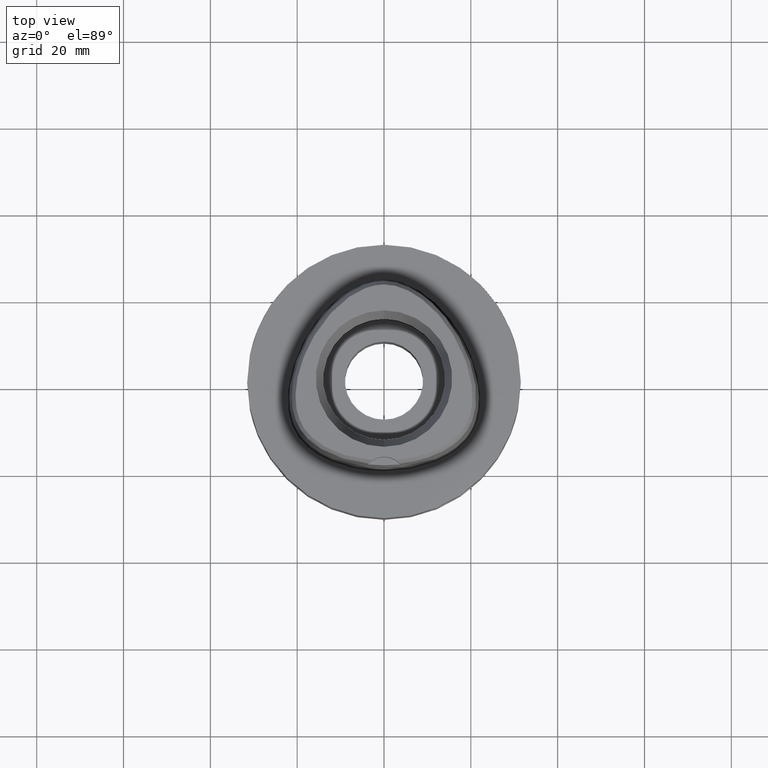
[diagram: clean part render]
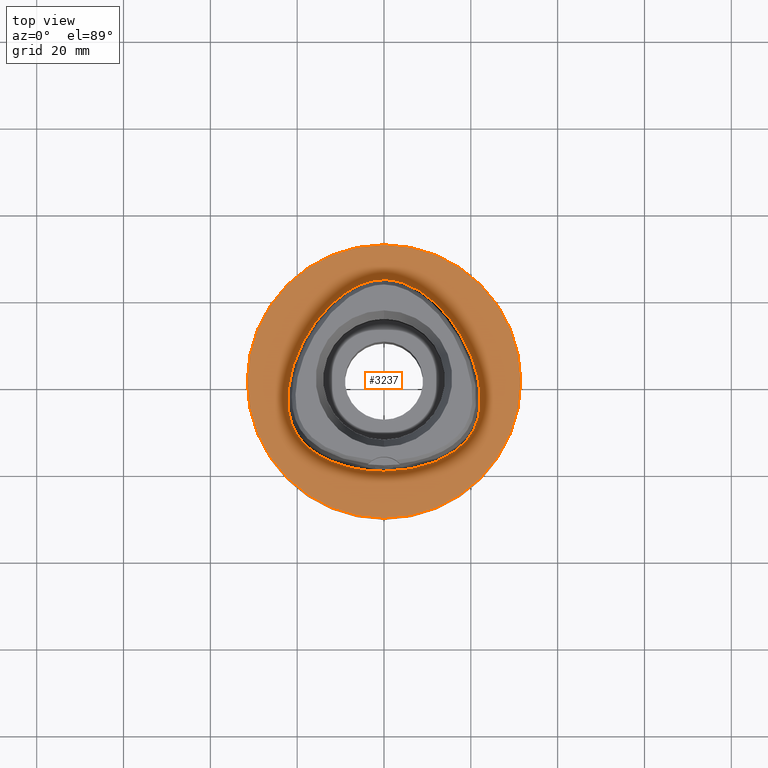
[diagram: same view with one face highlighted and labeled with its STEP entity id]
A machine part, top view. The second image highlights one B-rep face of the part: STEP entity #3237.
In plain terms, the highlighted planar face has unit normal (0, 0, -1).
Its self-contained STEP definition (entity closure, byte-faithful):
#77 = CARTESIAN_POINT ( 'NONE',  ( 5.098437023540008717, 22.52602540625645133, -6.704317588829104835E-07 ) ) ;
#209 = CARTESIAN_POINT ( 'NONE',  ( 0.0000000000000000000, 1.284042168905999827E-14, 0.0000000000000000000 ) ) ;
#220 = CARTESIAN_POINT ( 'NONE',  ( 0.0000000000000000000, 31.50000000000000000, 0.0000000000000000000 ) ) ;
#361 = CARTESIAN_POINT ( 'NONE',  ( -1.042620445671000137E-11, -20.67499999999999716, 1.284898113832999718E-13 ) ) ;
#454 = CARTESIAN_POINT ( 'NONE',  ( 16.95889173633975133, -15.67838868510706973, -6.704317588829104835E-07 ) ) ;
#466 = CARTESIAN_POINT ( 'NONE',  ( -20.74942740925061457, 4.657187500164842398, -1.936139383583793117E-08 ) ) ;
#514 = CARTESIAN_POINT ( 'NONE',  ( 14.40795640245716669, 15.64093751087823314, -6.704317588829104835E-07 ) ) ;
#542 = CARTESIAN_POINT ( 'NONE',  ( 10.74572892142285419, 19.17433595040339966, -6.704317588829104835E-07 ) ) ;
#648 = VERTEX_POINT ( 'NONE', #220 ) ;
#679 = DIRECTION ( 'NONE',  ( 0.0000000000000000000, 1.000000000000000000, 0.0000000000000000000 ) ) ;
#734 = CARTESIAN_POINT ( 'NONE',  ( 0.0000000000000000000, 1.284042168905999827E-14, 0.0000000000000000000 ) ) ;
#780 = VERTEX_POINT ( 'NONE', #1204 ) ;
#825 = FACE_BOUND ( 'NONE', #1275, .T. ) ;
#854 = EDGE_LOOP ( 'NONE', ( #1507, #3348 ) ) ;
#857 = AXIS2_PLACEMENT_3D ( 'NONE', #209, #2934, #679 ) ;
#859 = CARTESIAN_POINT ( 'NONE',  ( 20.74942742465746193, 4.657187505714481368, -6.704317588829104835E-07 ) ) ;
#873 = CARTESIAN_POINT ( 'NONE',  ( -20.34961798599187688, -11.74885742211361617, -1.936139383583793117E-08 ) ) ;
#887 = CARTESIAN_POINT ( 'NONE',  ( 14.67337965251771514, -17.21410157711000721, -6.704317588829104835E-07 ) ) ;
#937 = CARTESIAN_POINT ( 'NONE',  ( -1.042620445671000137E-11, -20.67499999999999716, 1.284898113832999718E-13 ) ) ;
#973 = CARTESIAN_POINT ( 'NONE',  ( 22.24453909536158847, -4.100468749901521548, -6.704317588829104835E-07 ) ) ;
#1198 = FACE_OUTER_BOUND ( 'NONE', #854, .T. ) ;
#1204 = CARTESIAN_POINT ( 'NONE',  ( -1.042620445671000137E-11, -20.67499999999999716, 1.284898113832999718E-13 ) ) ;
#1275 = EDGE_LOOP ( 'NONE', ( #5121, #2413 ) ) ;
#1299 = CARTESIAN_POINT ( 'NONE',  ( -0.8548392423348609714, 23.47500000048928825, -1.936139383583792786E-08 ) ) ;
#1351 = CARTESIAN_POINT ( 'NONE',  ( -11.23259756743898841, -18.89324218796141963, -1.936139383583793117E-08 ) ) ;
#1394 = CARTESIAN_POINT ( 'NONE',  ( 6.341471022189880458, -20.29812501659793256, -6.704317588829105894E-07 ) ) ;
#1507 = ORIENTED_EDGE ( 'NONE', *, *, #1643, .F. ) ;
#1643 = EDGE_CURVE ( 'NONE', #648, #2311, #5079, .T. ) ;
#1696 = CARTESIAN_POINT ( 'NONE',  ( -2.113823673093606637, -20.67500000048518061, -1.936139383583793117E-08 ) ) ;
#1810 = CARTESIAN_POINT ( 'NONE',  ( 20.34961800011020472, -11.74885743026355733, -6.704317588829104835E-07 ) ) ;
#2045 = AXIS2_PLACEMENT_3D ( 'NONE', #4611, #3012, #2935 ) ;
#2163 = CARTESIAN_POINT ( 'NONE',  ( -2.564517727056281338, 23.29328125048219533, -1.936139383583793117E-08 ) ) ;
#2204 = CARTESIAN_POINT ( 'NONE',  ( 19.64947367221709129, -12.82525391612707466, -6.704317588829104835E-07 ) ) ;
#2281 = EDGE_CURVE ( 'NONE', #780, #5371, #2637, .T. ) ;
#2311 = VERTEX_POINT ( 'NONE', #3860 ) ;
#2413 = ORIENTED_EDGE ( 'NONE', *, *, #2281, .F. ) ;
#2473 = DIRECTION ( 'NONE',  ( 0.0000000000000000000, 0.0000000000000000000, -1.000000000000000000 ) ) ;
#2534 = CARTESIAN_POINT ( 'NONE',  ( -20.93173252255640193, -10.60431640645195017, -1.936139383583793117E-08 ) ) ;
#2603 = CARTESIAN_POINT ( 'NONE',  ( 0.8548392434961373798, 23.47500001676050374, -6.704317588829104835E-07 ) ) ;
#2616 = CARTESIAN_POINT ( 'NONE',  ( -16.95889172623624930, -15.67838867225212418, -1.936139383583793117E-08 ) ) ;
#2637 = B_SPLINE_CURVE_WITH_KNOTS ( 'NONE', 3,
 ( #937, #4817, #1394, #3111, #887, #454, #3080, #2204, #1810, #3910, #5237, #4707, #973, #5152, #859, #4360, #514, #542, #2693, #77, #4786, #2603, #4328 ),
 .UNSPECIFIED., .F., .F.,
 ( 4, 1, 1, 1, 1, 1, 1, 1, 1, 1, 1, 1, 1, 1, 1, 1, 1, 1, 1, 1, 4 ),
 ( 0.0000000000000000000, 0.08333333333343000138, 0.1666666666668000230, 0.2083333333333000081, 0.2500000000000000000, 0.2916666666666999919, 0.3125000000000000000, 0.3333333333333000081, 0.3541666666666999919, 0.3750000000000000000, 0.4166666666666000163, 0.4583333333332000326, 0.4999999999998999689, 0.5833333333332000326, 0.6666666666664999852, 0.7499999999998000488, 0.8333333333329999704, 0.8749999999997000177, 0.9166666666664000651, 0.9583333333329999704, 1.000000000000000000 ),
 .UNSPECIFIED. ) ;
#2693 = CARTESIAN_POINT ( 'NONE',  ( 7.571159442842092524, 21.31457032700676635, -6.704317588829104835E-07 ) ) ;
#2934 = DIRECTION ( 'NONE',  ( 0.0000000000000000000, 0.0000000000000000000, -1.000000000000000000 ) ) ;
#2935 = DIRECTION ( 'NONE',  ( 0.0000000000000000000, -1.000000000000000000, 0.0000000000000000000 ) ) ;
#2960 = CARTESIAN_POINT ( 'NONE',  ( -6.341471019297461709, -20.29812500048721091, -1.936139383583793117E-08 ) ) ;
#3012 = DIRECTION ( 'NONE',  ( 0.0000000000000000000, 0.0000000000000000000, -1.000000000000000000 ) ) ;
#3016 = B_SPLINE_CURVE_WITH_KNOTS ( 'NONE', 3,
 ( #5530, #1299, #2163, #4773, #5502, #4266, #4694, #3440, #466, #4749, #4674, #3894, #4321, #2534, #873, #4721, #4215, #2616, #5140, #1351, #2960, #1696, #361 ),
 .UNSPECIFIED., .F., .F.,
 ( 4, 1, 1, 1, 1, 1, 1, 1, 1, 1, 1, 1, 1, 1, 1, 1, 1, 1, 1, 1, 4 ),
 ( 0.0000000000000000000, 0.04166666666751999565, 0.08333333333413001087, 0.1250000000007999990, 0.1666666666674000152, 0.2500000000006000200, 0.3333333333337999971, 0.4166666666671000052, 0.5000000000002999823, 0.5416666666670000296, 0.5833333333335000148, 0.6250000000001999512, 0.6458333333335000148, 0.6666666666667999674, 0.6875000000001000311, 0.7083333333333999837, 0.7500000000000000000, 0.7916666666667000474, 0.8333333333333000637, 0.9166666666666000163, 1.000000000000000000 ),
 .UNSPECIFIED. ) ;
#3080 = CARTESIAN_POINT ( 'NONE',  ( 18.56841066362533610, -14.16937989437063194, -6.704317588829104835E-07 ) ) ;
#3111 = CARTESIAN_POINT ( 'NONE',  ( 11.23259757303450890, -18.89324220332994742, -6.704317588829104835E-07 ) ) ;
#3237 = ADVANCED_FACE ( 'NONE', ( #1198, #825 ), #5142, .F. ) ;
#3329 = DIRECTION ( 'NONE',  ( 0.0000000000000000000, -1.000000000000000000, 0.0000000000000000000 ) ) ;
#3348 = ORIENTED_EDGE ( 'NONE', *, *, #5356, .F. ) ;
#3440 = CARTESIAN_POINT ( 'NONE',  ( -18.06826688568742867, 10.43171875024612305, -1.936139383583793117E-08 ) ) ;
#3860 = CARTESIAN_POINT ( 'NONE',  ( 0.0000000000000000000, -31.50000000000000000, 0.0000000000000000000 ) ) ;
#3894 = CARTESIAN_POINT ( 'NONE',  ( -22.05732874370039198, -6.847636718819056334, -1.936139383583793117E-08 ) ) ;
#3910 = CARTESIAN_POINT ( 'NONE',  ( 20.93173253746063267, -10.60431641307271988, -6.704317588829104835E-07 ) ) ;
#4205 = CIRCLE ( 'NONE', #4744, 31.50000000000000000 ) ;
#4215 = CARTESIAN_POINT ( 'NONE',  ( -18.56841065177838956, -14.16937988315053865, -1.936139383583793117E-08 ) ) ;
#4266 = CARTESIAN_POINT ( 'NONE',  ( -10.74572891090238436, 19.17433593787038859, -1.936139383583793117E-08 ) ) ;
#4321 = CARTESIAN_POINT ( 'NONE',  ( -21.55524826055441778, -8.996025390764080143, -1.936139383583793117E-08 ) ) ;
#4328 = CARTESIAN_POINT ( 'NONE',  ( 5.534747782599000141E-11, 23.47499999999000053, 1.254922092168000080E-13 ) ) ;
#4360 = CARTESIAN_POINT ( 'NONE',  ( 18.06826689985112111, 10.43171875842249108, -6.704317588829104835E-07 ) ) ;
#4611 = CARTESIAN_POINT ( 'NONE',  ( 0.0000000000000000000, 1.224646799146999965E-14, 0.0000000000000000000 ) ) ;
#4674 = CARTESIAN_POINT ( 'NONE',  ( -22.24453907903185268, -4.100468749996733386, -1.936139383583793117E-08 ) ) ;
#4694 = CARTESIAN_POINT ( 'NONE',  ( -14.40795638995207462, 15.64093750031059926, -1.936139383583793117E-08 ) ) ;
#4707 = CARTESIAN_POINT ( 'NONE',  ( 22.05732875988168118, -6.847636721144406913, -6.704317588829104835E-07 ) ) ;
#4721 = CARTESIAN_POINT ( 'NONE',  ( -19.64947365902738596, -12.82525390653195352, -1.936139383583793117E-08 ) ) ;
#4744 = AXIS2_PLACEMENT_3D ( 'NONE', #734, #2473, #3329 ) ;
#4749 = CARTESIAN_POINT ( 'NONE',  ( -21.97832647834290043, -0.2810937499153365882, -1.936139383583793117E-08 ) ) ;
#4773 = CARTESIAN_POINT ( 'NONE',  ( -5.098437017463878007, 22.52602539107704516, -1.936139383583793117E-08 ) ) ;
#4786 = CARTESIAN_POINT ( 'NONE',  ( 2.564517730401052020, 23.29328126649896546, -6.704317588829104835E-07 ) ) ;
#4817 = CARTESIAN_POINT ( 'NONE',  ( 2.113823674063530778, -20.67500001675610122, -6.704317588829103776E-07 ) ) ;
#4923 = EDGE_CURVE ( 'NONE', #5371, #780, #3016, .T. ) ;
#5079 = CIRCLE ( 'NONE', #857, 31.50000000000000000 ) ;
#5121 = ORIENTED_EDGE ( 'NONE', *, *, #4923, .F. ) ;
#5140 = CARTESIAN_POINT ( 'NONE',  ( -14.67337964443183296, -17.21410156292554561, -1.936139383583793117E-08 ) ) ;
#5142 = PLANE ( 'NONE',  #2045 ) ;
#5152 = CARTESIAN_POINT ( 'NONE',  ( 21.97832649445885522, -0.2810937470676990180, -6.704317588829104835E-07 ) ) ;
#5237 = CARTESIAN_POINT ( 'NONE',  ( 21.55524827622200590, -8.996025395416662462, -6.704317588829104835E-07 ) ) ;
#5356 = EDGE_CURVE ( 'NONE', #2311, #648, #4205, .T. ) ;
#5371 = VERTEX_POINT ( 'NONE', #5475 ) ;
#5475 = CARTESIAN_POINT ( 'NONE',  ( 5.534747782599000141E-11, 23.47499999999000053, 1.254922092168000080E-13 ) ) ;
#5502 = CARTESIAN_POINT ( 'NONE',  ( -7.571159434596632209, 21.31457031291904158, -1.936139383583793117E-08 ) ) ;
#5530 = CARTESIAN_POINT ( 'NONE',  ( 5.534747782599000141E-11, 23.47499999999000053, 1.254922092168000080E-13 ) ) ;